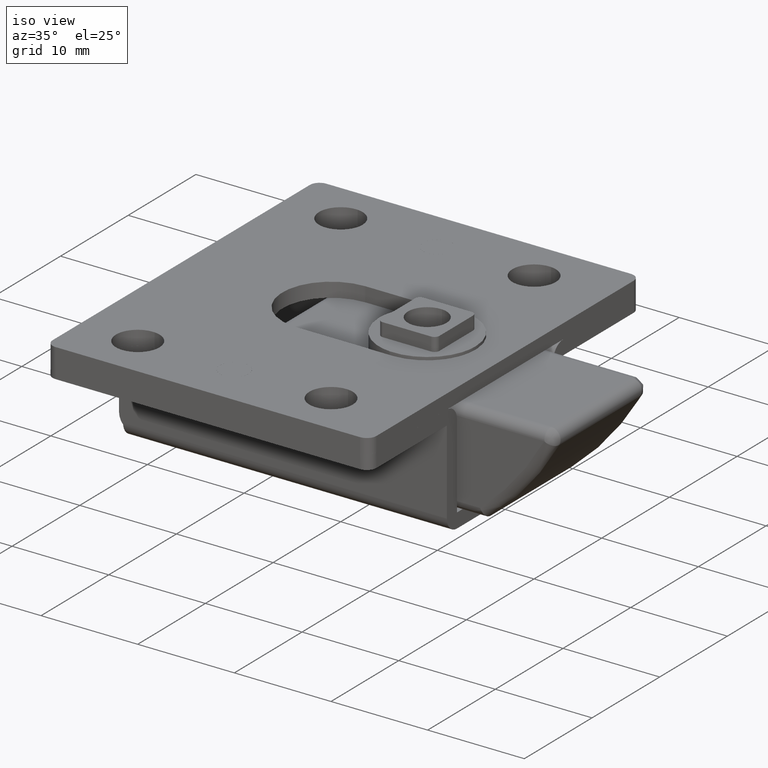
[diagram: clean part render]
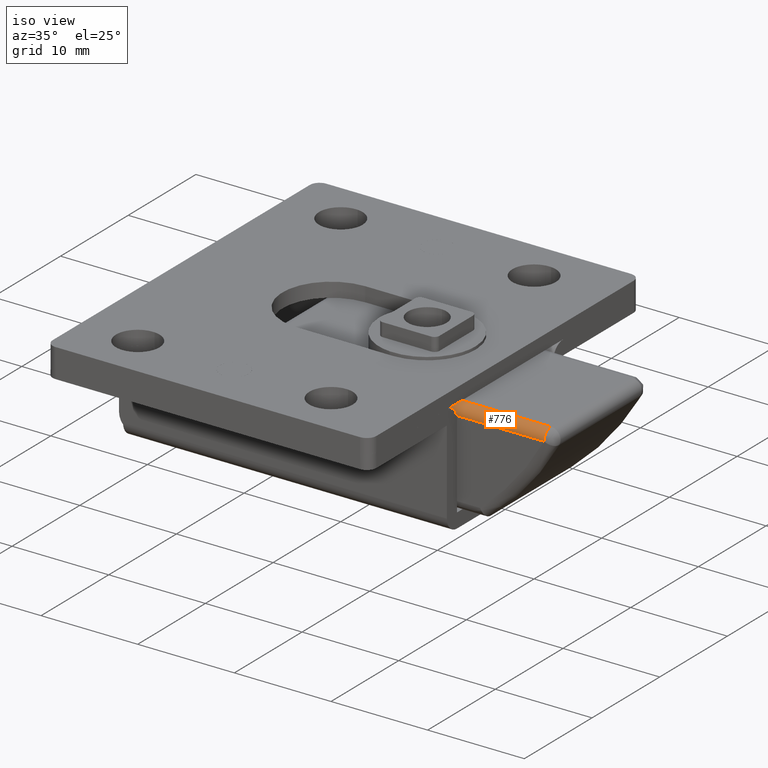
[diagram: same view with one face highlighted and labeled with its STEP entity id]
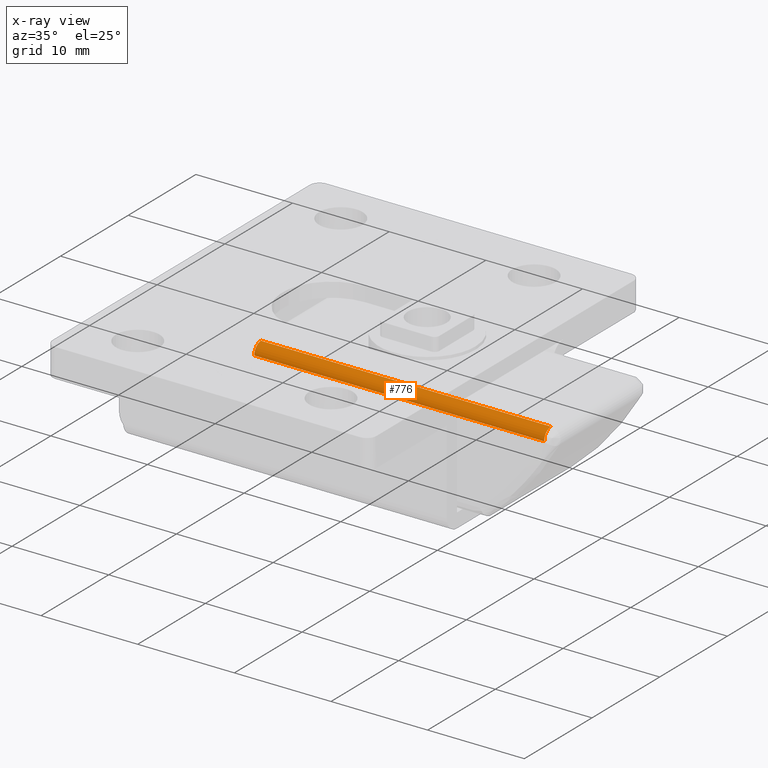
[diagram: x-ray of the same camera — body ghosted, the highlighted face saturated]
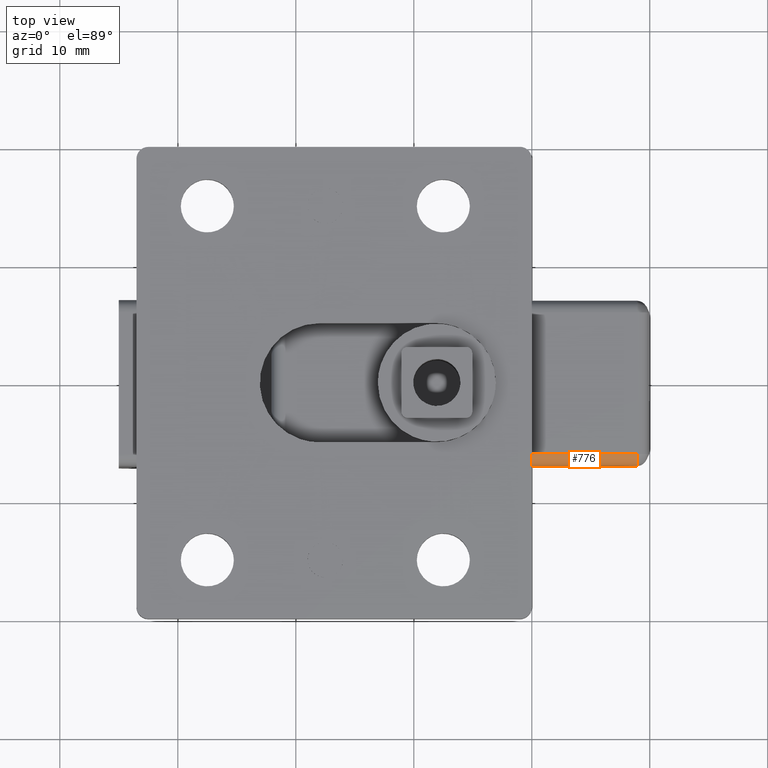
[diagram: same view with one face highlighted and labeled with its STEP entity id]
A machine part, iso view. The second image highlights one B-rep face of the part: STEP entity #776.
The next image is the same camera in x-ray: the body ghosted, the highlighted face saturated — about 0% of this face is hidden behind the body in this view.
A second angle (top view) of the same face is appended — the face is thin or edge-on in the first view.
In plain terms, the highlighted face is a freeform B-spline surface patch.
Its self-contained STEP definition (entity closure, byte-faithful):
#19=CARTESIAN_POINT('',(8.949999999963600,-7.000000000024420,10.499999999865080));
#20=VERTEX_POINT('',#19);
#34=CARTESIAN_POINT('',(-21.050000000035499,-7.000000000024420,10.500000000015600));
#35=VERTEX_POINT('',#34);
#36=CARTESIAN_POINT('',(8.949999999963600,-7.000000000024420,10.499999999865080));
#37=CARTESIAN_POINT('',(-21.050000000035499,-7.000000000024420,10.500000000015600));
#38=QUASI_UNIFORM_CURVE('',1,(#36,#37),.UNSPECIFIED.,.F.,.U.);
#39=EDGE_CURVE('',#20,#35,#38,.T.);
#557=CARTESIAN_POINT('',(-21.050000000030451,-6.000000000024420,11.500000000015600));
#558=VERTEX_POINT('',#557);
#559=CARTESIAN_POINT('',(-21.050000000035499,-7.000000000024420,10.500000000015600));
#560=CARTESIAN_POINT('',(-21.050000000030483,-7.000000000024421,11.500000000015605));
#561=CARTESIAN_POINT('',(-21.050000000030479,-6.000000000024420,11.500000000015600));
#569=(BOUNDED_CURVE()B_SPLINE_CURVE(2,(#559,#560,#561),.UNSPECIFIED.,.F.,.U.)CURVE()GEOMETRIC_REPRESENTATION_ITEM()QUASI_UNIFORM_CURVE()RATIONAL_B_SPLINE_CURVE((1.0,0.707106781186548,1.0))REPRESENTATION_ITEM(''));
#570=EDGE_CURVE('',#35,#558,#569,.T.);
#719=CARTESIAN_POINT('',(8.949999999968609,-6.000000000024430,11.499999999865080));
#720=VERTEX_POINT('',#719);
#735=CARTESIAN_POINT('',(8.949999999968616,-6.000000000024420,11.499999999865080));
#736=CARTESIAN_POINT('',(8.949999999968616,-7.000000000024421,11.499999999865079));
#737=CARTESIAN_POINT('',(8.949999999963600,-7.000000000024420,10.499999999865080));
#745=(BOUNDED_CURVE()B_SPLINE_CURVE(2,(#735,#736,#737),.UNSPECIFIED.,.F.,.U.)CURVE()GEOMETRIC_REPRESENTATION_ITEM()QUASI_UNIFORM_CURVE()RATIONAL_B_SPLINE_CURVE((1.0,0.707106781186548,1.0))REPRESENTATION_ITEM(''));
#746=EDGE_CURVE('',#720,#20,#745,.T.);
#752=CARTESIAN_POINT('',(-21.800000000035698,-6.999048221606277,10.456380612654041));
#753=CARTESIAN_POINT('',(9.718749999963359,-6.999048221606277,10.456380612495900));
#754=CARTESIAN_POINT('',(-21.800000000030074,-7.047934490960405,11.576060264478416));
#755=CARTESIAN_POINT('',(9.718749999968978,-7.047934490960403,11.576060264320276));
#756=CARTESIAN_POINT('',(-21.800000000030472,-5.929941907980897,11.497542913251296));
#757=CARTESIAN_POINT('',(9.718749999968582,-5.929941907980894,11.497542913093161));
#765=(BOUNDED_SURFACE()B_SPLINE_SURFACE(1,2,((#752,#754,#756),(#753,#755,#757)),.UNSPECIFIED.,.F.,.F.,.U.)B_SPLINE_SURFACE_WITH_KNOTS((2,2),(3,3),(0.0,31.518749999999059),(0.0,0.994386594966985),.UNSPECIFIED.)GEOMETRIC_REPRESENTATION_ITEM()RATIONAL_B_SPLINE_SURFACE(((1.0,0.664513898535122,0.996233561259061),(1.0,0.664513898535122,0.996233561259061)))REPRESENTATION_ITEM('')SURFACE());
#766=ORIENTED_EDGE('',*,*,#746,.F.);
#767=CARTESIAN_POINT('',(-21.050000000030451,-6.000000000024420,11.500000000015600));
#768=CARTESIAN_POINT('',(8.949999999968609,-6.000000000024430,11.499999999865080));
#769=QUASI_UNIFORM_CURVE('',1,(#767,#768),.UNSPECIFIED.,.F.,.U.);
#770=EDGE_CURVE('',#558,#720,#769,.T.);
#771=ORIENTED_EDGE('',*,*,#770,.F.);
#772=ORIENTED_EDGE('',*,*,#570,.F.);
#773=ORIENTED_EDGE('',*,*,#39,.F.);
#774=EDGE_LOOP('',(#766,#771,#772,#773));
#775=FACE_OUTER_BOUND('',#774,.T.);
#776=ADVANCED_FACE('',(#775),#765,.T.);